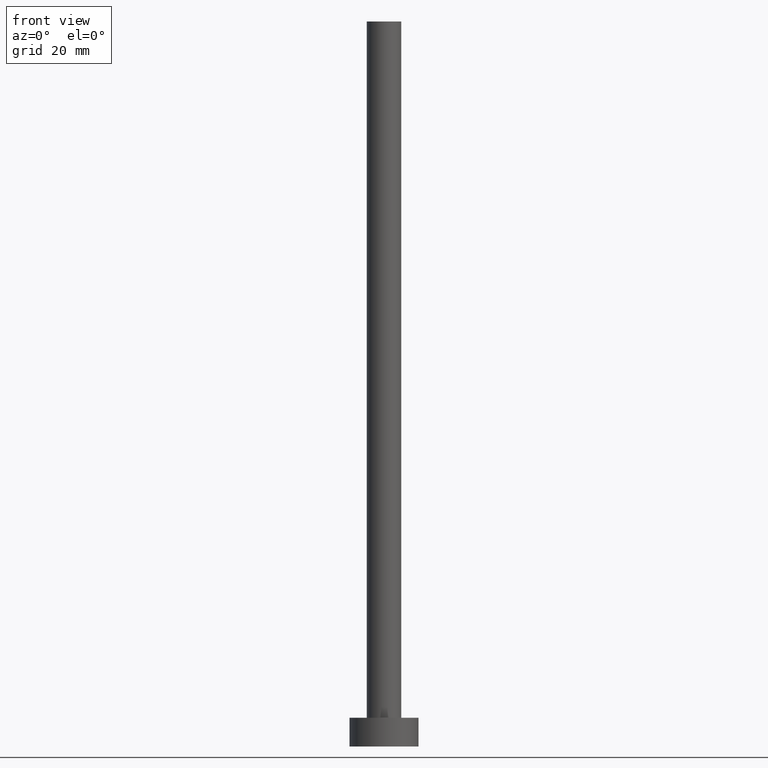
[diagram: clean part render]
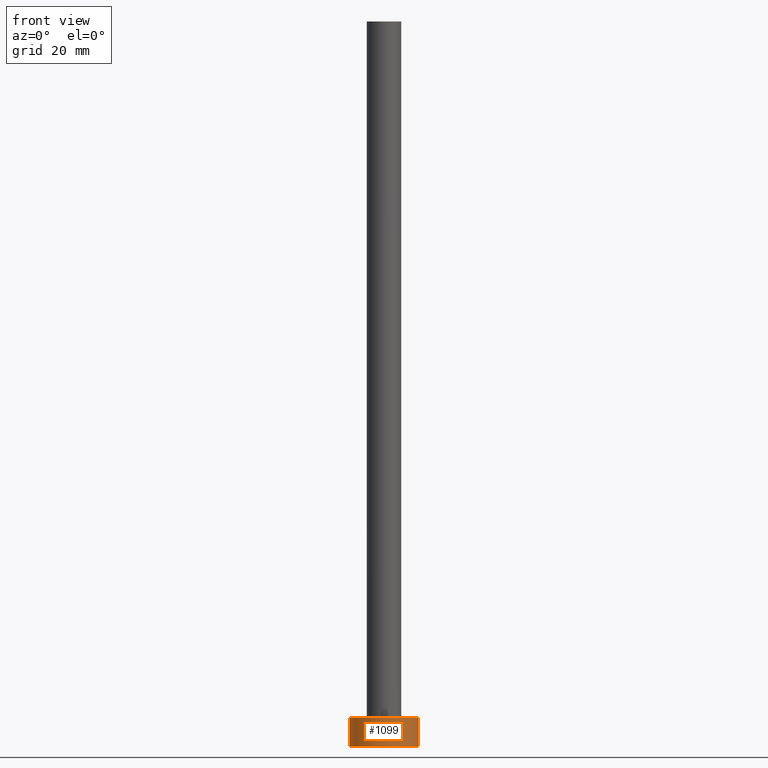
[diagram: same view with one face highlighted and labeled with its STEP entity id]
A machine part, front view. The second image highlights one B-rep face of the part: STEP entity #1099.
In plain terms, the highlighted cylindrical surface (edge-blend (fillet) strip) has radius 6 mm, axis along (-0, -0, -1).
Its self-contained STEP definition (entity closure, byte-faithful):
#17 = DIRECTION ( 'NONE',  ( -0.000000000000000000, -0.000000000000000000, -1.000000000000000000 ) ) ;
#26 = CARTESIAN_POINT ( 'NONE',  ( -6.000000000000000888, 0.000000000000000000, 0.000000000000000000 ) ) ;
#73 = FACE_OUTER_BOUND ( 'NONE', #247, .T. ) ;
#128 = VERTEX_POINT ( 'NONE', #201 ) ;
#149 = EDGE_CURVE ( 'NONE', #1283, #616, #1344, .T. ) ;
#160 = DIRECTION ( 'NONE',  ( 0.000000000000000000, 0.000000000000000000, 1.000000000000000000 ) ) ;
#201 = CARTESIAN_POINT ( 'NONE',  ( 6.000000000000000888, 7.347880794884120722E-16, 0.000000000000000000 ) ) ;
#247 = EDGE_LOOP ( 'NONE', ( #779, #580, #1062, #445 ) ) ;
#324 = AXIS2_PLACEMENT_3D ( 'NONE', #754, #160, #374 ) ;
#374 = DIRECTION ( 'NONE',  ( 1.000000000000000000, 0.000000000000000000, 0.000000000000000000 ) ) ;
#445 = ORIENTED_EDGE ( 'NONE', *, *, #1081, .T. ) ;
#469 = DIRECTION ( 'NONE',  ( -0.000000000000000000, -0.000000000000000000, -1.000000000000000000 ) ) ;
#494 = AXIS2_PLACEMENT_3D ( 'NONE', #1051, #1394, #637 ) ;
#555 = DIRECTION ( 'NONE',  ( 1.000000000000000000, 0.000000000000000000, 0.000000000000000000 ) ) ;
#579 = CARTESIAN_POINT ( 'NONE',  ( 6.000000000000000888, 7.347880794884120722E-16, 5.000000000000000000 ) ) ;
#580 = ORIENTED_EDGE ( 'NONE', *, *, #149, .F. ) ;
#616 = VERTEX_POINT ( 'NONE', #579 ) ;
#637 = DIRECTION ( 'NONE',  ( -1.000000000000000000, 0.000000000000000000, 0.000000000000000000 ) ) ;
#728 = EDGE_CURVE ( 'NONE', #1283, #1348, #1116, .T. ) ;
#754 = CARTESIAN_POINT ( 'NONE',  ( 0.000000000000000000, 0.000000000000000000, 0.000000000000000000 ) ) ;
#775 = EDGE_CURVE ( 'NONE', #616, #128, #924, .T. ) ;
#779 = ORIENTED_EDGE ( 'NONE', *, *, #775, .F. ) ;
#819 = VECTOR ( 'NONE', #17, 1000.000000000000000 ) ;
#924 = LINE ( 'NONE', #1273, #819 ) ;
#939 = CARTESIAN_POINT ( 'NONE',  ( -6.000000000000000888, 0.000000000000000000, 5.000000000000000000 ) ) ;
#971 = CYLINDRICAL_SURFACE ( 'NONE', #494, 6.000000000000000888 ) ;
#1034 = CARTESIAN_POINT ( 'NONE',  ( -6.000000000000000888, 0.000000000000000000, 5.000000000000000000 ) ) ;
#1046 = VECTOR ( 'NONE', #469, 1000.000000000000000 ) ;
#1051 = CARTESIAN_POINT ( 'NONE',  ( 0.000000000000000000, 0.000000000000000000, 5.000000000000000000 ) ) ;
#1062 = ORIENTED_EDGE ( 'NONE', *, *, #728, .T. ) ;
#1081 = EDGE_CURVE ( 'NONE', #1348, #128, #1140, .T. ) ;
#1099 = ADVANCED_FACE ( 'NONE', ( #73 ), #971, .T. ) ;
#1104 = DIRECTION ( 'NONE',  ( 0.000000000000000000, 0.000000000000000000, 1.000000000000000000 ) ) ;
#1116 = LINE ( 'NONE', #1034, #1046 ) ;
#1119 = CARTESIAN_POINT ( 'NONE',  ( 0.000000000000000000, 0.000000000000000000, 5.000000000000000000 ) ) ;
#1140 = CIRCLE ( 'NONE', #324, 6.000000000000000888 ) ;
#1148 = AXIS2_PLACEMENT_3D ( 'NONE', #1119, #1104, #555 ) ;
#1273 = CARTESIAN_POINT ( 'NONE',  ( 6.000000000000000888, 7.347880794884120722E-16, 5.000000000000000000 ) ) ;
#1283 = VERTEX_POINT ( 'NONE', #939 ) ;
#1344 = CIRCLE ( 'NONE', #1148, 6.000000000000000888 ) ;
#1348 = VERTEX_POINT ( 'NONE', #26 ) ;
#1394 = DIRECTION ( 'NONE',  ( -0.000000000000000000, -0.000000000000000000, -1.000000000000000000 ) ) ;